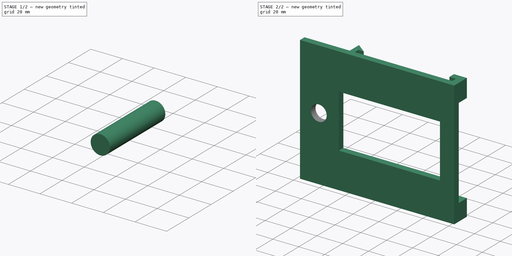
[diagram: build sequence overview — one tinted view per stage of 2, left to right]
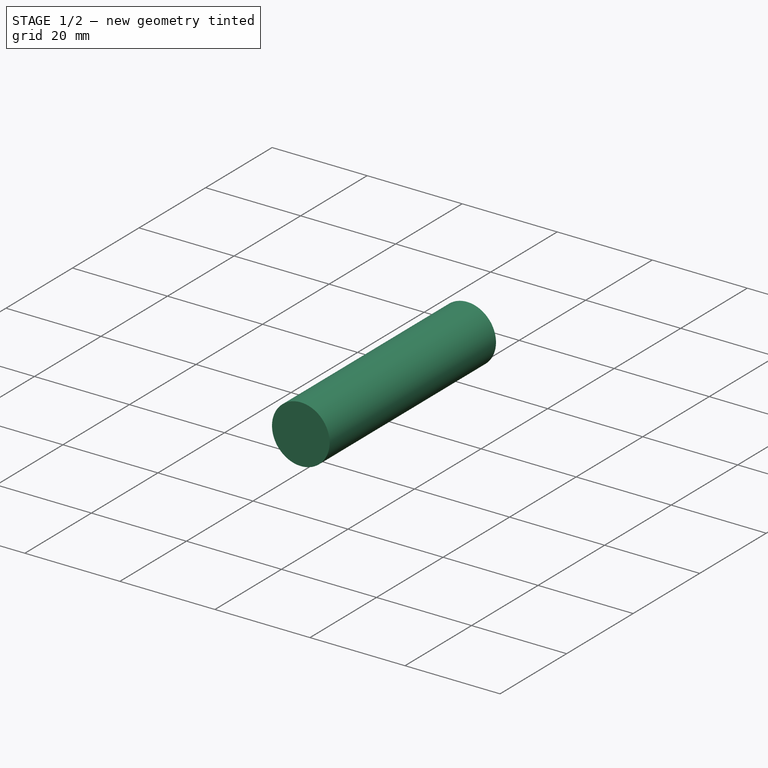
[diagram: stage 1 of 2 — iso view after this stage's code; geometry added in this stage tinted green]
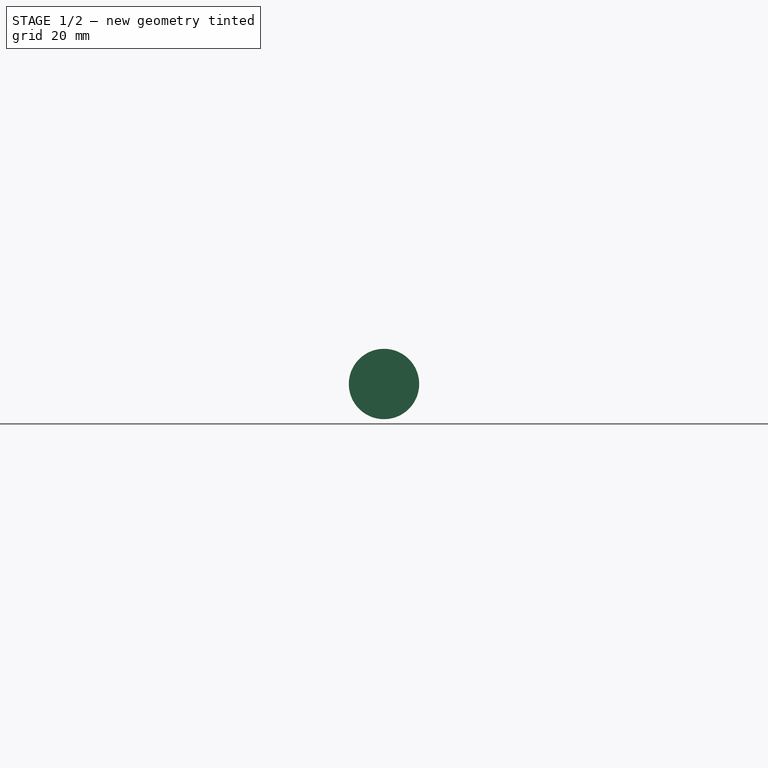
[diagram: stage 1 of 2 — front view after this stage's code; geometry added in this stage tinted green]
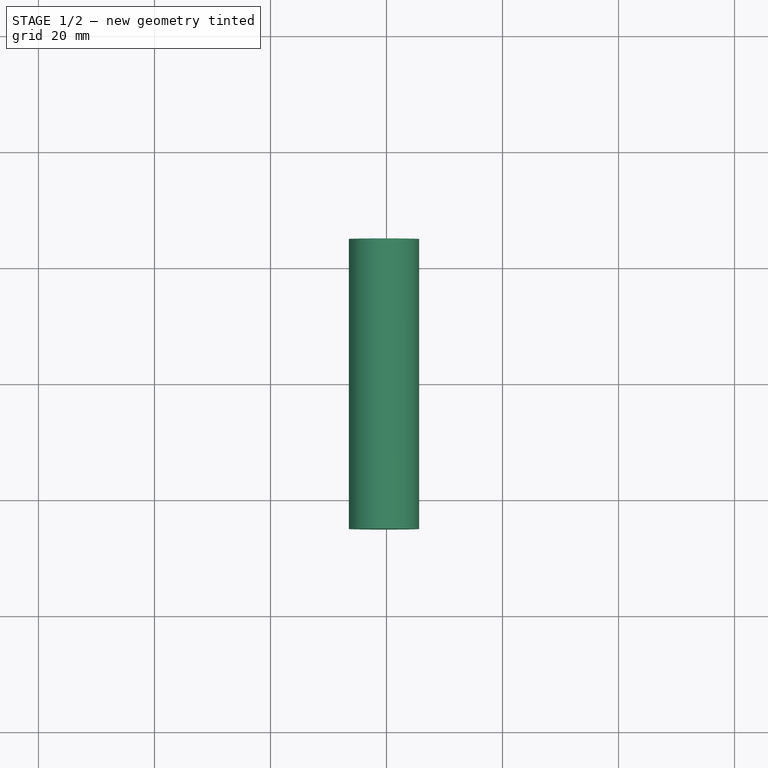
[diagram: stage 1 of 2 — top view after this stage's code; geometry added in this stage tinted green]
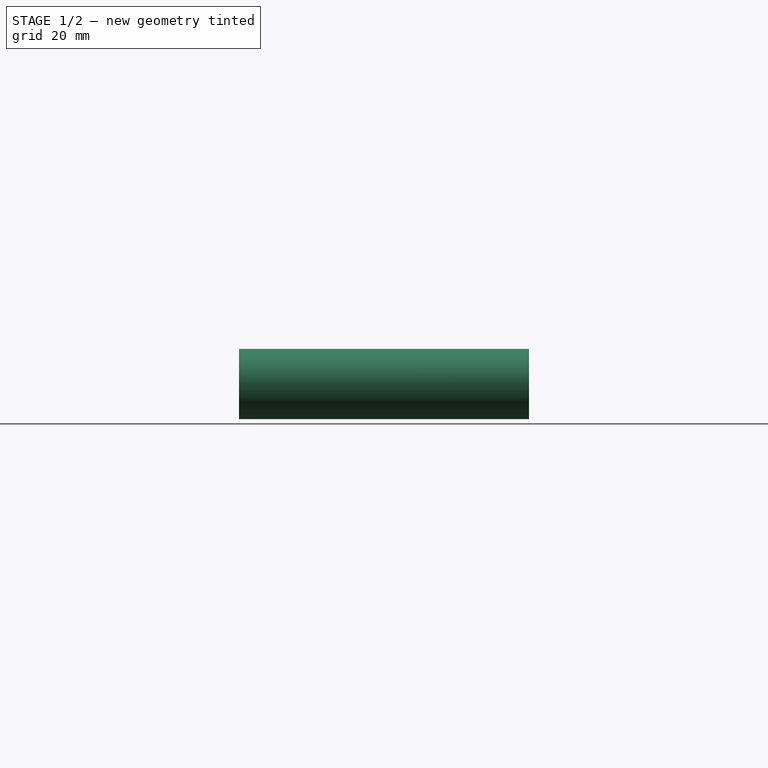
[diagram: stage 1 of 2 — right view after this stage's code; geometry added in this stage tinted green]
FCSTD DOCUMENT  (FreeCAD 0.19R24415 (Git))
Label: halter_wohnwagen_2
License: All rights reserved
LicenseURL: http://en.wikipedia.org/wiki/All_rights_reserved
objects: Sketcher::SketchObject×4, Part::Extrusion×3, Part::Cut×3, PartDesign::Pad×1, PartDesign::Plane×1, PartDesign::Body×1
note: 14 computed .brp shape members not serialized (recipe doc carries the construction recipe); baked Part::Feature solids carry a one-line shape summary decoded from their .brp

FEATURE [Sketcher::SketchObject] Sketch
  FullyConstrained = false
  MapMode = 5
  Support = -> [XY_Plane]
  sketch-geometry (14):
    g0: LineSegment StartX=0 StartY=0 StartZ=0 EndX=84.2675 EndY=0 EndZ=0
    g1: LineSegment StartX=84.2675 StartY=0 StartZ=0 EndX=84.2675 EndY=14 EndZ=0
    g2: LineSegment StartX=84.2675 StartY=14 StartZ=0 EndX=74.2675 EndY=14 EndZ=0
    g3: LineSegment StartX=74.2675 StartY=14 StartZ=0 EndX=74.2675 EndY=9 EndZ=0
    g4: LineSegment StartX=74.2675 StartY=9 StartZ=0 EndX=79.2675 EndY=9 EndZ=0
    g5: LineSegment StartX=79.2675 StartY=9 StartZ=0 EndX=79.2675 EndY=5 EndZ=0
    g6: LineSegment StartX=79.2675 StartY=5 StartZ=0 EndX=4 EndY=5 EndZ=0
    g7: LineSegment StartX=4 StartY=5 StartZ=0 EndX=4 EndY=9 EndZ=0
    g8: LineSegment StartX=4 StartY=9 StartZ=0 EndX=8 EndY=9 EndZ=0
    g9: LineSegment StartX=8 StartY=9 StartZ=0 EndX=0 EndY=15.2135 EndZ=0
    g10: LineSegment StartX=0 StartY=0 StartZ=0 EndX=-35 EndY=0 EndZ=0
    g11: LineSegment StartX=-35 StartY=0 StartZ=0 EndX=-35 EndY=5 EndZ=0
    g12: LineSegment StartX=-35 StartY=5 StartZ=0 EndX=0 EndY=5 EndZ=0
    g13: LineSegment StartX=0 StartY=5 StartZ=0 EndX=0 EndY=15.2135 EndZ=0
  constraints (37):
    c: PointOnObject(g9,g-2)
    c: PointOnObject(g0,g-1)
    c: Coincident(g0,g1)
    c: Vertical(g1)
    c: Coincident(g1,g2)
    c: Horizontal(g2)
    c: Coincident(g2,g3)
    c: Coincident(g3,g4)
    c: Horizontal(g4)
    c: Coincident(g4,g5)
    c: Vertical(g5)
    c: Coincident(g5,g6)
    c: Horizontal(g6)
    c: Coincident(g6,g7)
    c: Vertical(g7)
    c: Coincident(g7,g8)
    c: Horizontal(g8)
    c: Coincident(g8,g9)
    c: DistanceX(g-1,g6) = 4
    c: DistanceY(g0,g5) = 5
    c: DistanceX(g5,g0) = 5
    c: Equal(g5,g7)
    c: DistanceY(g5,g5) = 4
    c: Vertical(g3)
    c: DistanceY(g3,g2) = 5
    c: DistanceX(g2,g2) = 10
    c: DistanceX(g8,g8) = 4
    c: PointOnObject(g10,g-1)
    c: Coincident(g10,g11)
    c: Coincident(g11,g12)
    c: Horizontal(g12)
    c: Vertical(g11)
    c: DistanceY(g11,g11) = 5
    c: DistanceX(g10,g10) = 35
    c: Coincident(g12,g13)
    c: Coincident(g13,g9)
    c: Vertical(g13)
FEATURE [PartDesign::Pad] Pad
  Direction = (1,1,1)
  Length = 97
  Length2 = 100
  Profile = -> Sketch
  Refine = true
  Type = 0
FEATURE [PartDesign::Plane] DatumPlane
  Length = 134.712
  MapMode = 5
  Placement = pos=(0,0,97) rot=(0,0,1;0rad)
  ResizeMode = 0
  Support = -> [Pad]
  Width = 65.4446
FEATURE [Sketcher::SketchObject] Sketch001
  FullyConstrained = false
  MapMode = 5
  Placement = pos=(0,0,97) rot=(0,0,1;0rad)
  Support = -> [DatumPlane]
  sketch-geometry (4):
    g0: LineSegment StartX=-4.1852 StartY=19.3676 StartZ=0 EndX=90.99 EndY=19.3676 EndZ=0
    g1: LineSegment StartX=90.99 StartY=19.3676 StartZ=0 EndX=90.99 EndY=5 EndZ=0
    g2: LineSegment StartX=90.99 StartY=5 StartZ=0 EndX=-4.1852 EndY=5 EndZ=0
    g3: LineSegment StartX=-4.1852 StartY=5 StartZ=0 EndX=-4.1852 EndY=19.3676 EndZ=0
  constraints (9):
    c: Coincident(g0,g1)
    c: Coincident(g1,g2)
    c: Coincident(g2,g3)
    c: Coincident(g3,g0)
    c: Horizontal(g0)
    c: Horizontal(g2)
    c: Vertical(g1)
    c: Vertical(g3)
    c: DistanceY(g-1,g2) = 5
FEATURE [Part::Extrusion] Extrude
  Base = -> Sketch001
  Dir = (0,0,1)
  DirMode = 2
  FaceMakerClass = Part::FaceMakerBullseye
  LengthFwd = 70
  LengthRev = 0
  Placement = pos=(0,0,-84) rot=(0,0,1;0rad)
  Solid = true
  Symmetric = false
FEATURE [PartDesign::Body] Body
  Group = -> [Sketch,Pad,DatumPlane,Sketch001,Sketch002,Sketch003]
  Origin = -> Origin
  Tip = -> Pad
FEATURE [Part::Cut] Cut
  Base = -> Body
  Refine = true
  Tool = -> Extrude
FEATURE [Sketcher::SketchObject] Sketch002
  FullyConstrained = false
  MapMode = 5
  Placement = pos=(0,5,0) rot=(0,0.707107,0.707107;3.14159rad)
  Support = -> [Cut]
  sketch-geometry (4):
    g0: LineSegment StartX=-73.2296 StartY=68.8855 StartZ=0 EndX=4.96903 EndY=68.8855 EndZ=0
    g1: LineSegment StartX=4.96903 StartY=68.8855 StartZ=0 EndX=4.96903 EndY=27.6916 EndZ=0
    g2: LineSegment StartX=4.96903 StartY=27.6916 StartZ=0 EndX=-73.2296 EndY=27.6916 EndZ=0
    g3: LineSegment StartX=-73.2296 StartY=27.6916 StartZ=0 EndX=-73.2296 EndY=68.8855 EndZ=0
  constraints (8):
    c: Coincident(g0,g1)
    c: Coincident(g1,g2)
    c: Coincident(g2,g3)
    c: Coincident(g3,g0)
    c: Horizontal(g0)
    c: Horizontal(g2)
    c: Vertical(g1)
    c: Vertical(g3)
FEATURE [Part::Extrusion] Extrude001
  Base = -> Sketch002
  Dir = (0,1,2e-16)
  DirMode = 2
  FaceMakerClass = Part::FaceMakerBullseye
  LengthFwd = 50
  LengthRev = 0
  Placement = pos=(0,-20,0) rot=(0,0,1;0rad)
  Solid = true
  Symmetric = false
FEATURE [Part::Cut] Cut001
  Base = -> Cut
  Refine = true
  Tool = -> Extrude001
FEATURE [Sketcher::SketchObject] Sketch003
  FullyConstrained = false
  MapMode = 5
  Placement = pos=(0,5,0) rot=(0,0.707107,0.707107;3.14159rad)
  Support = -> [Cut001]
  sketch-geometry (1):
    g0: Circle CenterX=20.4314 CenterY=49.75 CenterZ=0 NormalX=0 NormalY=0 NormalZ=1 AngleXU=0 Radius=6.06404
  constraints (1):
    c: DistanceY(g-1,g0) = 49.75
FEATURE [Part::Extrusion] Extrude002
  Base = -> Sketch003
  Dir = (0,1,2e-16)
  DirMode = 2
  FaceMakerClass = Part::FaceMakerBullseye
  LengthFwd = 50
  LengthRev = 0
  Placement = pos=(0,-30,0) rot=(0,0,1;0rad)
  Solid = true
  Symmetric = false
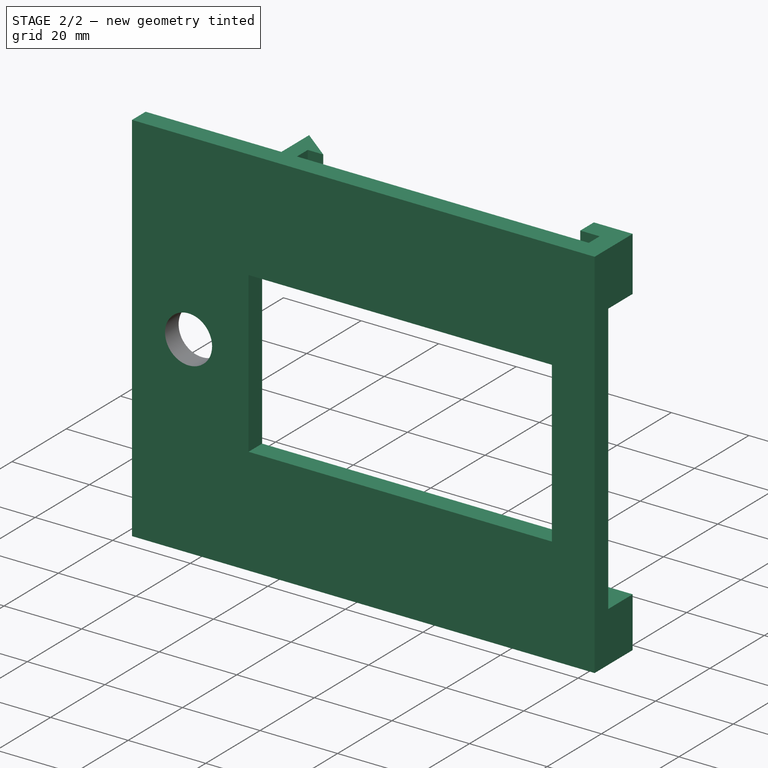
[diagram: stage 2 of 2 — iso view after this stage's code; geometry added in this stage tinted green]
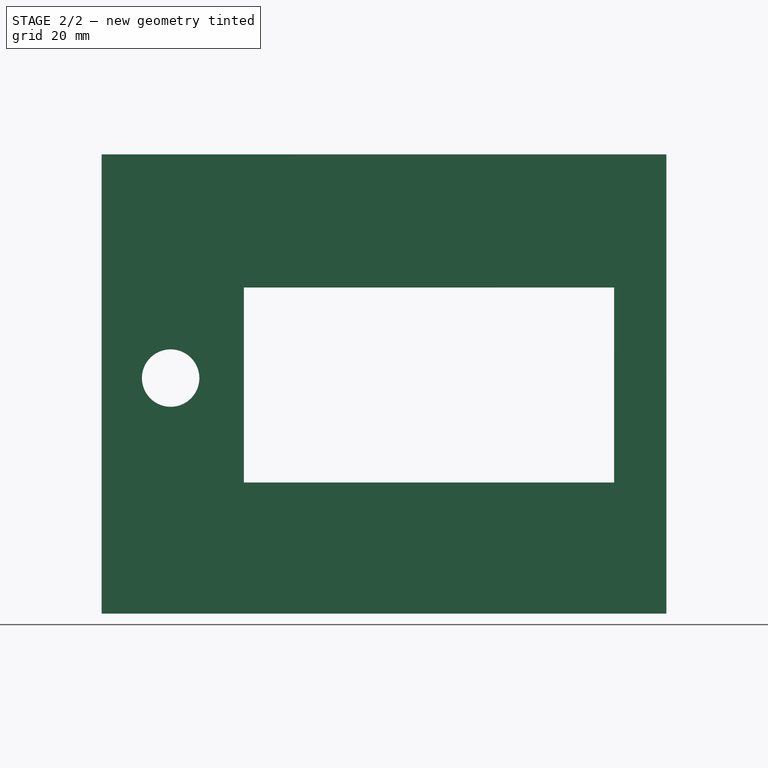
[diagram: stage 2 of 2 — front view after this stage's code; geometry added in this stage tinted green]
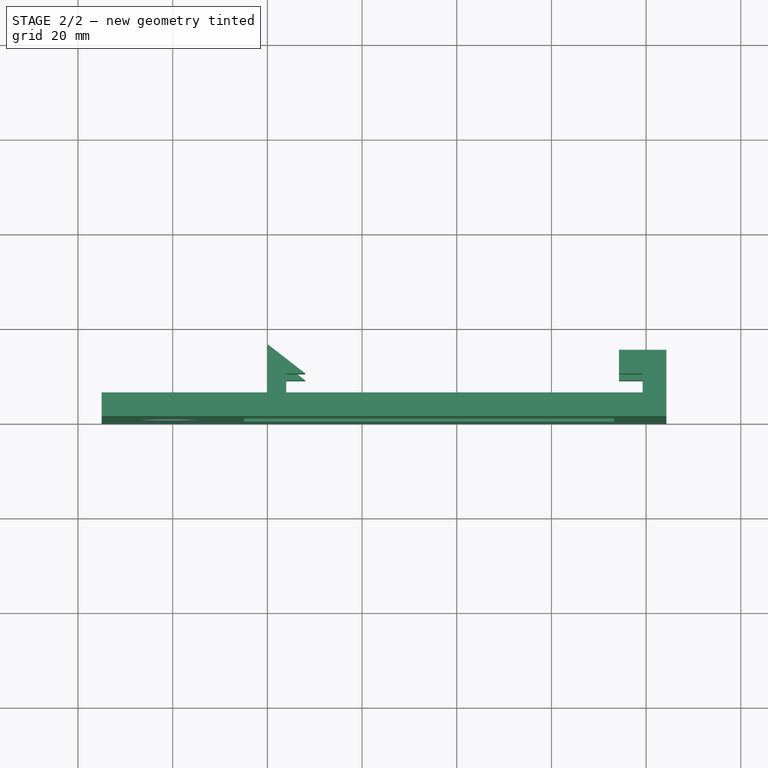
[diagram: stage 2 of 2 — top view after this stage's code; geometry added in this stage tinted green]
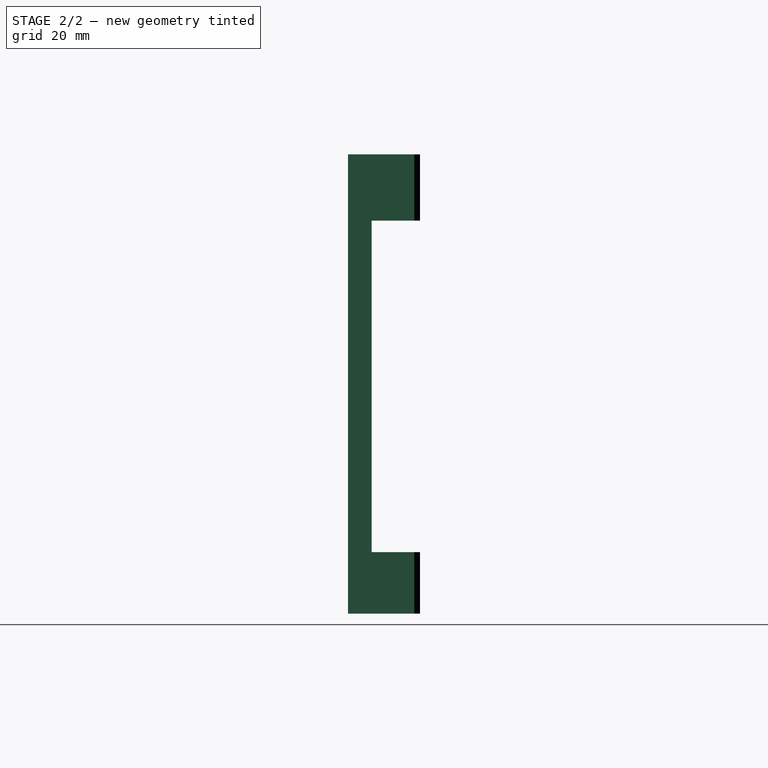
[diagram: stage 2 of 2 — right view after this stage's code; geometry added in this stage tinted green]
FEATURE [Part::Cut] Cut002
  Base = -> Cut001
  Refine = true
  Tool = -> Extrude002
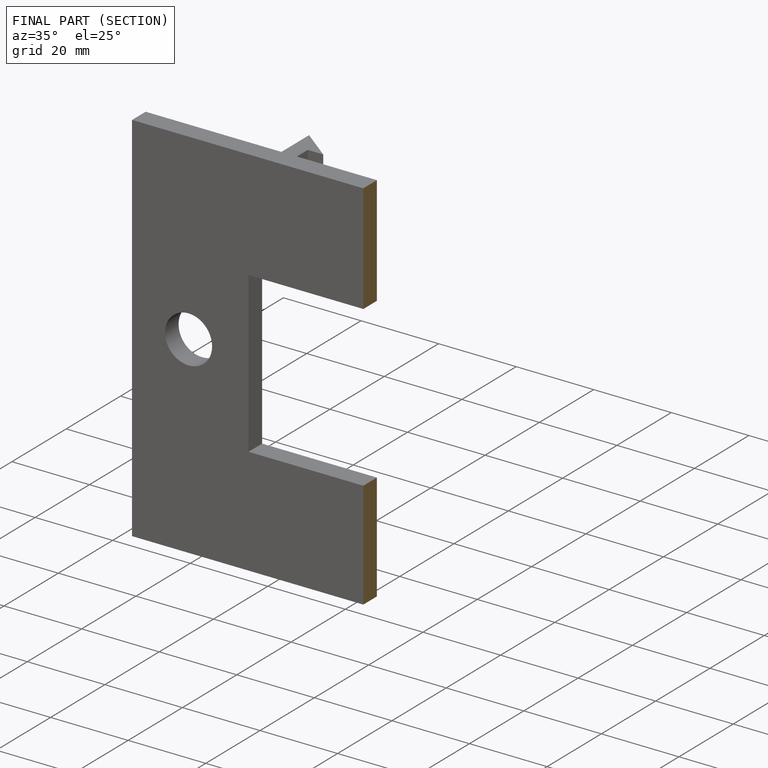
[diagram: finished part — half-section view (interior)]
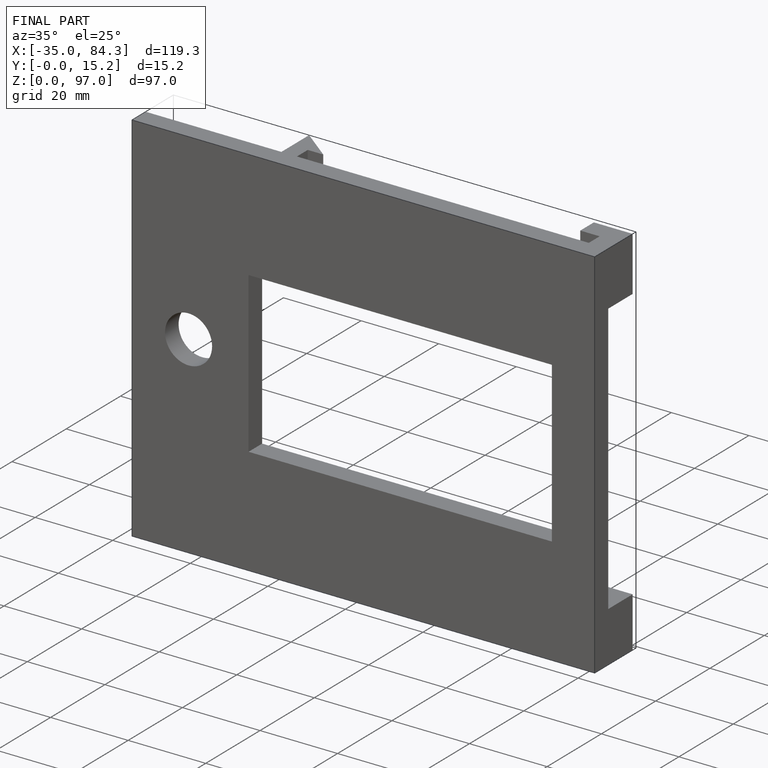
[diagram: finished part — iso view with bounding-box wireframe]
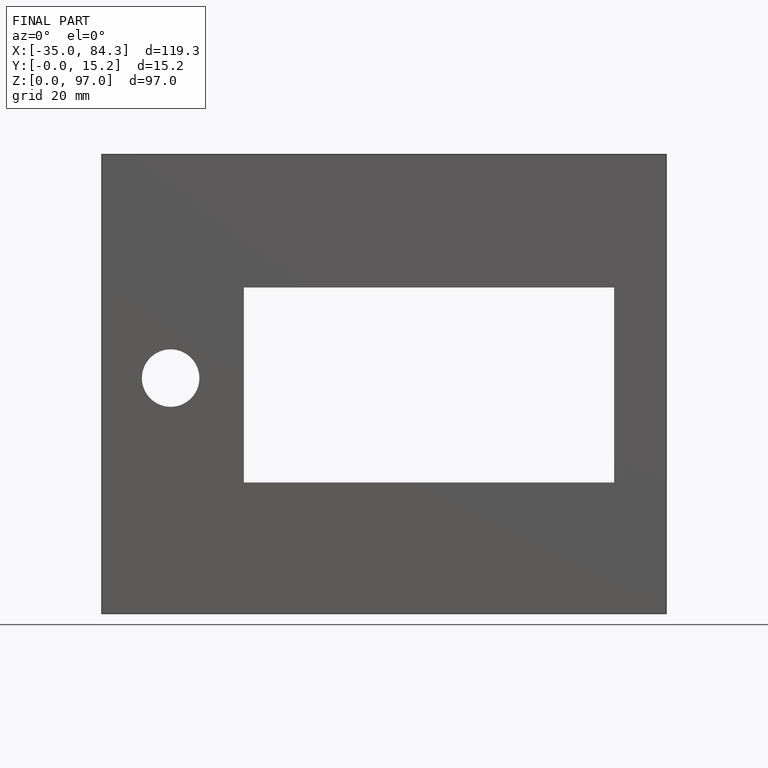
[diagram: finished part — front view with bounding-box wireframe]
